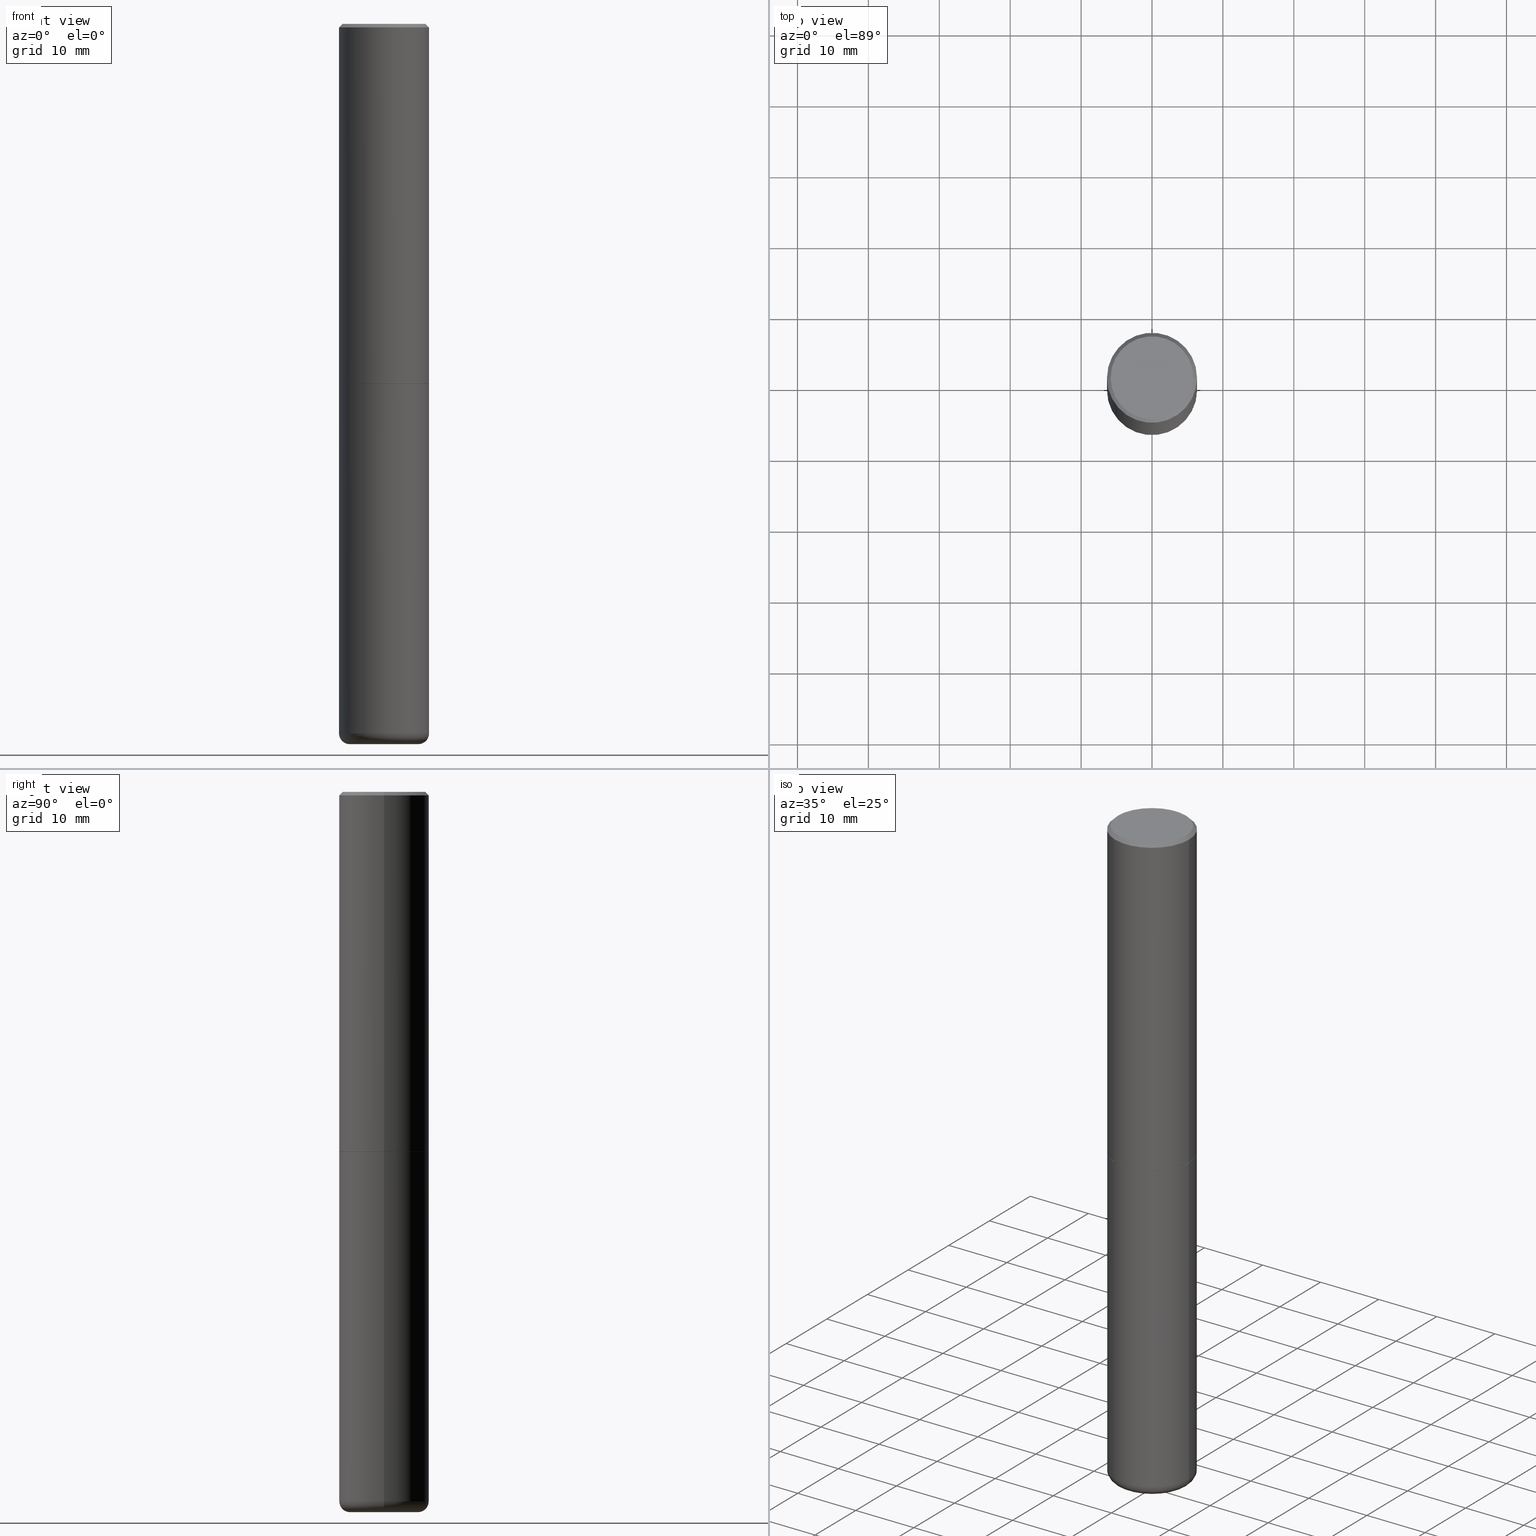
[diagram: canonical four-view strip — front | top / right | iso, engineering-drawing reading convention]
A machine part, canonical four-view strip (front | top / right | iso — engineering-drawing reading convention). The complete STEP part file that produces these views, byte-faithful:
ISO-10303-21;
HEADER;
FILE_DESCRIPTION (( 'STEP AP203' ),
    '1' );
FILE_NAME ('32686.STEP',
    '2022-04-26T19:41:12',
    ( '' ),
    ( '' ),
    'SwSTEP 2.0',
    'SolidWorks 2022',
    '' );
FILE_SCHEMA (( 'CONFIG_CONTROL_DESIGN' ));
ENDSEC;

DATA;
#1 = CARTESIAN_POINT ( 'NONE',  ( -0.1899999999999999467, -1.240640527709780404E-14, -3.939999999999999947 ) ) ;
#2 = ORIENTED_EDGE ( 'NONE', *, *, #45, .T. ) ;
#3 = CARTESIAN_POINT ( 'NONE',  ( 4.890937612370287172E-31, -6.982962677686310098E-17, -0.02000000000000005593 ) ) ;
#4 = AXIS2_PLACEMENT_3D ( 'NONE', #278, #108, #286 ) ;
#5 = ORGANIZATION ( 'UNSPECIFIED', 'UNSPECIFIED', '' ) ;
#6 = APPROVAL_STATUS ( 'not_yet_approved' ) ;
#7 = ORIENTED_EDGE ( 'NONE', *, *, #355, .F. ) ;
#8 = CALENDAR_DATE ( 2022, 26, 4 ) ;
#9 = PRODUCT_DEFINITION ( 'UNKNOWN', '', #112, #409 ) ;
#10 = VECTOR ( 'NONE', #408, 39.37007874015747433 ) ;
#11 = AXIS2_PLACEMENT_3D ( 'NONE', #295, #219, #253 ) ;
#12 = LINE ( 'NONE', #343, #425 ) ;
#13 = CARTESIAN_POINT ( 'NONE',  ( 4.890937612370273194E-29, -6.982962677686291165E-15, -2.000000000000000000 ) ) ;
#14 = FACE_OUTER_BOUND ( 'NONE', #204, .T. ) ;
#15 = EDGE_CURVE ( 'NONE', #256, #72, #311, .T. ) ;
#16 = AXIS2_PLACEMENT_3D ( 'NONE', #3, #78, #210 ) ;
#17 = AXIS2_PLACEMENT_3D ( 'NONE', #53, #217, #88 ) ;
#18 = DIRECTION ( 'NONE',  ( -2.445468806185136597E-29, 3.491481338843145583E-15, 1.000000000000000000 ) ) ;
#19 = CARTESIAN_POINT ( 'NONE',  ( 0.000000000000000000, 0.000000000000000000, 0.000000000000000000 ) ) ;
#20 = CC_DESIGN_PERSON_AND_ORGANIZATION_ASSIGNMENT ( #71, #232, ( #112 ) ) ;
#21 = CARTESIAN_POINT ( 'NONE',  ( -0.2500000000000000000, 1.776356839400250465E-15, -1.229733772563726445E-29 ) ) ;
#22 = CARTESIAN_POINT ( 'NONE',  ( -6.746709532489932096E-19, -1.395437790004556830E-14, -3.996692677346274980 ) ) ;
#23 = APPROVAL_PERSON_ORGANIZATION ( #228, #430, #413 ) ;
#24 = CARTESIAN_POINT ( 'NONE',  ( 4.890937612370272633E-29, -6.982962677686290376E-15, -1.999999999999999778 ) ) ;
#25 = ORIENTED_EDGE ( 'NONE', *, *, #135, .T. ) ;
#26 = LINE ( 'NONE', #145, #133 ) ;
#27 = ORIENTED_EDGE ( 'NONE', *, *, #240, .F. ) ;
#28 = EDGE_CURVE ( 'NONE', #33, #127, #100, .T. ) ;
#29 = MECHANICAL_CONTEXT ( 'NONE', #202, 'mechanical' ) ;
#30 = EDGE_LOOP ( 'NONE', ( #269, #104, #276 ) ) ;
#31 = CIRCLE ( 'NONE', #392, 0.2299999999999997324 ) ;
#32 = DATE_AND_TIME ( #386, #337 ) ;
#33 = VERTEX_POINT ( 'NONE', #365 ) ;
#34 = ORIENTED_EDGE ( 'NONE', *, *, #28, .F. ) ;
#35 = VERTEX_POINT ( 'NONE', #440 ) ;
#36 = DIRECTION ( 'NONE',  ( -6.982962677686266711E-15, -1.000000000000000000, 3.491481338843145583E-15 ) ) ;
#37 = EDGE_LOOP ( 'NONE', ( #308, #123, #63, #151 ) ) ;
#38 = PERSON_AND_ORGANIZATION_ROLE ( 'classification_officer' ) ;
#39 = VERTEX_POINT ( 'NONE', #227 ) ;
#40 = CC_DESIGN_APPROVAL ( #218, ( #346 ) ) ;
#41 = EDGE_CURVE ( 'NONE', #127, #400, #57, .T. ) ;
#42 = CYLINDRICAL_SURFACE ( 'NONE', #79, 0.2499999999999998612 ) ;
#43 = APPROVAL_ROLE ( '' ) ;
#44 = CARTESIAN_POINT ( 'NONE',  ( -0.2499999999999997224, 1.675911042644701605E-15, -0.02000000000000005593 ) ) ;
#45 = EDGE_CURVE ( 'NONE', #309, #201, #122, .T. ) ;
#46 = VERTEX_POINT ( 'NONE', #370 ) ;
#47 = PERSON_AND_ORGANIZATION ( #342, #5 ) ;
#48 = DIRECTION ( 'NONE',  ( -2.445468806185136597E-29, 3.491481338843145583E-15, 1.000000000000000000 ) ) ;
#49 = AXIS2_PLACEMENT_3D ( 'NONE', #330, #431, #368 ) ;
#50 = EDGE_CURVE ( 'NONE', #35, #33, #64, .T. ) ;
#51 = CARTESIAN_POINT ( 'NONE',  ( 9.635147096369438236E-29, -1.375643647504199401E-14, -3.939999999999999947 ) ) ;
#52 = DIRECTION ( 'NONE',  ( -2.445468806185136877E-29, 3.491481338843145188E-15, 1.000000000000000000 ) ) ;
#53 = CARTESIAN_POINT ( 'NONE',  ( 9.781852877335901907E-29, -1.396589344920142545E-14, -3.999990861709383783 ) ) ;
#54 = CLOSED_SHELL ( 'NONE', ( #247, #97, #118, #394, #307, #288, #404, #68 ) ) ;
#55 = CARTESIAN_POINT ( 'NONE',  ( 9.635147096369438236E-29, -1.375643647504199401E-14, -3.939999999999999947 ) ) ;
#56 = LOCAL_TIME ( 15, 41, 12.00000000000000000, #126 ) ;
#57 = LINE ( 'NONE', #332, #105 ) ;
#58 = DIRECTION ( 'NONE',  ( 1.000000000000000000, -6.982962677686266711E-15, 4.876176775795935793E-29 ) ) ;
#59 = ORIENTED_EDGE ( 'NONE', *, *, #124, .T. ) ;
#60 = CARTESIAN_POINT ( 'NONE',  ( 0.1899999999999999467, -1.508319938380238406E-14, -3.939999999999999947 ) ) ;
#61 = CC_DESIGN_DATE_AND_TIME_ASSIGNMENT ( #390, #243, ( #346 ) ) ;
#62 = CARTESIAN_POINT ( 'NONE',  ( 0.2500000000000000000, -8.725211865769014047E-15, -1.998999999999999888 ) ) ;
#63 = ORIENTED_EDGE ( 'NONE', *, *, #214, .F. ) ;
#64 = LINE ( 'NONE', #163, #10 ) ;
#65 = AXIS2_PLACEMENT_3D ( 'NONE', #51, #255, #366 ) ;
#66 = FACE_OUTER_BOUND ( 'NONE', #378, .T. ) ;
#67 = DIRECTION ( 'NONE',  ( -1.000000000000000000, 7.105427357601017636E-15, 0.000000000000000000 ) ) ;
#68 = ADVANCED_FACE ( 'NONE', ( #66 ), #77, .F. ) ;
#69 = EDGE_LOOP ( 'NONE', ( #296, #407, #25, #367 ) ) ;
#70 = VERTEX_POINT ( 'NONE', #213 ) ;
#71 = PERSON_AND_ORGANIZATION ( #342, #5 ) ;
#72 = VERTEX_POINT ( 'NONE', #178 ) ;
#73 = AXIS2_PLACEMENT_3D ( 'NONE', #421, #211, #352 ) ;
#74 = CC_DESIGN_APPROVAL ( #292, ( #9 ) ) ;
#75 = EDGE_CURVE ( 'NONE', #72, #256, #391, .T. ) ;
#76 = DATE_AND_TIME ( #200, #144 ) ;
#77 = PLANE ( 'NONE',  #272 ) ;
#78 = DIRECTION ( 'NONE',  ( 2.445468806185136597E-29, -3.491481338843145583E-15, -1.000000000000000000 ) ) ;
#79 = AXIS2_PLACEMENT_3D ( 'NONE', #237, #420, #281 ) ;
#80 = AXIS2_PLACEMENT_3D ( 'NONE', #1, #129, #67 ) ;
#81 = PRODUCT_RELATED_PRODUCT_CATEGORY ( 'detail', '', ( #362 ) ) ;
#82 = ADVANCED_FACE ( 'NONE', ( #14 ), #141, .F. ) ;
#83 = CONICAL_SURFACE ( 'NONE', #289, 2255.510300424678917, 1.553343034274961676 ) ;
#84 = CARTESIAN_POINT ( 'NONE',  ( 0.2489999999999999991, -8.721720384430171040E-15, -1.999999999999999778 ) ) ;
#85 = CARTESIAN_POINT ( 'NONE',  ( 4.890937612370273194E-29, -6.982962677686291165E-15, -2.000000000000000000 ) ) ;
#86 = DIRECTION ( 'NONE',  ( -1.000000000000000000, 6.982962677686269077E-15, 0.000000000000000000 ) ) ;
#87 = CARTESIAN_POINT ( 'NONE',  ( -0.2500000000000000000, -8.593342736963892519E-15, -2.000000000000000000 ) ) ;
#88 = DIRECTION ( 'NONE',  ( 1.000000000000000000, -6.982962677686262766E-15, 0.000000000000000000 ) ) ;
#89 = ORIENTED_EDGE ( 'NONE', *, *, #235, .T. ) ;
#90 = CC_DESIGN_DATE_AND_TIME_ASSIGNMENT ( #76, #208, ( #9 ) ) ;
#91 = FACE_OUTER_BOUND ( 'NONE', #306, .T. ) ;
#92 = ORIENTED_EDGE ( 'NONE', *, *, #28, .T. ) ;
#93 = ORIENTED_EDGE ( 'NONE', *, *, #393, .T. ) ;
#94 = DIRECTION ( 'NONE',  ( 1.000000000000000000, -6.982962677686270655E-15, 0.000000000000000000 ) ) ;
#95 = ORIENTED_EDGE ( 'NONE', *, *, #418, .F. ) ;
#96 = LINE ( 'NONE', #22, #325 ) ;
#97 = ADVANCED_FACE ( 'NONE', ( #136 ), #42, .T. ) ;
#98 = PERSON_AND_ORGANIZATION_ROLE ( 'creator' ) ;
#99 = ORIENTED_EDGE ( 'NONE', *, *, #50, .F. ) ;
#100 = CIRCLE ( 'NONE', #353, 0.06000000000000004635 ) ;
#101 = VECTOR ( 'NONE', #254, 39.37007874015748143 ) ;
#102 = PERSON_AND_ORGANIZATION_ROLE ( 'design_owner' ) ;
#103 = EDGE_LOOP ( 'NONE', ( #27, #226 ) ) ;
#104 = ORIENTED_EDGE ( 'NONE', *, *, #50, .T. ) ;
#105 = VECTOR ( 'NONE', #188, 39.37007874015748143 ) ;
#106 = FACE_OUTER_BOUND ( 'NONE', #37, .T. ) ;
#107 = CARTESIAN_POINT ( 'NONE',  ( 0.2500000000000000000, -1.550217714446356069E-14, -3.939999999999999947 ) ) ;
#108 = DIRECTION ( 'NONE',  ( -2.445468806185136597E-29, 3.491481338843145583E-15, 1.000000000000000000 ) ) ;
#109 = DIRECTION ( 'NONE',  ( -2.445468806185136597E-29, 3.491481338843145583E-15, 1.000000000000000000 ) ) ;
#110 = VECTOR ( 'NONE', #405, 39.37007874015748143 ) ;
#111 = LOCAL_TIME ( 15, 41, 12.00000000000000000, #350 ) ;
#112 = PRODUCT_DEFINITION_FORMATION_WITH_SPECIFIED_SOURCE ( 'ANY', '', #362, .NOT_KNOWN. ) ;
#113 = FACE_OUTER_BOUND ( 'NONE', #414, .T. ) ;
#114 = ADVANCED_FACE ( 'NONE', ( #106 ), #173, .T. ) ;
#115 = DIRECTION ( 'NONE',  ( 1.000000000000000000, -6.982962677686266711E-15, 0.000000000000000000 ) ) ;
#116 = CARTESIAN_POINT ( 'NONE',  ( 1.745740669421615390E-15, 0.2499999999999930334, -2.000000000000000888 ) ) ;
#117 = PLANE ( 'NONE',  #358 ) ;
#118 = ADVANCED_FACE ( 'NONE', ( #344 ), #239, .T. ) ;
#119 = DIRECTION ( 'NONE',  ( 1.000000000000000000, -6.982962677686266711E-15, 0.000000000000000000 ) ) ;
#120 = ORIENTED_EDGE ( 'NONE', *, *, #15, .T. ) ;
#121 = DIRECTION ( 'NONE',  ( -2.445468806185136597E-29, 3.491481338843145583E-15, 1.000000000000000000 ) ) ;
#122 = LINE ( 'NONE', #264, #110 ) ;
#123 = ORIENTED_EDGE ( 'NONE', *, *, #422, .T. ) ;
#124 = EDGE_CURVE ( 'NONE', #224, #72, #242, .T. ) ;
#125 = UNCERTAINTY_MEASURE_WITH_UNIT (LENGTH_MEASURE( 1.000000000000000082E-05 ), #381, 'distance_accuracy_value', 'NONE');
#126 = COORDINATED_UNIVERSAL_TIME_OFFSET ( 5, 0, .BEHIND. ) ;
#127 = VERTEX_POINT ( 'NONE', #107 ) ;
#128 = ORIENTED_EDGE ( 'NONE', *, *, #418, .T. ) ;
#129 = DIRECTION ( 'NONE',  ( 7.105427357601001859E-15, 1.000000000000000000, -3.491481338843145583E-15 ) ) ;
#130 = ORIENTED_EDGE ( 'NONE', *, *, #271, .T. ) ;
#131 = TOROIDAL_SURFACE ( 'NONE', #154, 0.1899999999999999467, 0.06000000000000006023 ) ;
#132 = LINE ( 'NONE', #277, #259 ) ;
#133 = VECTOR ( 'NONE', #52, 39.37007874015748143 ) ;
#134 =( NAMED_UNIT ( * ) SI_UNIT ( $, .STERADIAN. ) SOLID_ANGLE_UNIT ( ) );
#135 = EDGE_CURVE ( 'NONE', #270, #256, #12, .T. ) ;
#136 = FACE_OUTER_BOUND ( 'NONE', #267, .T. ) ;
#137 = FACE_OUTER_BOUND ( 'NONE', #168, .T. ) ;
#138 = AXIS2_PLACEMENT_3D ( 'NONE', #19, #402, #294 ) ;
#139 = CARTESIAN_POINT ( 'NONE',  ( 9.635147096369438236E-29, -1.375643647504199401E-14, -3.939999999999999947 ) ) ;
#140 = EDGE_CURVE ( 'NONE', #199, #39, #132, .T. ) ;
#141 = CONICAL_SURFACE ( 'NONE', #180, 2255.510300424678917, 1.553343034274961676 ) ;
#142 = DIRECTION ( 'NONE',  ( 1.000000000000000000, -6.982962677686265922E-15, 4.876176775795935793E-29 ) ) ;
#143 = FACE_OUTER_BOUND ( 'NONE', #69, .T. ) ;
#144 = LOCAL_TIME ( 15, 41, 12.00000000000000000, #338 ) ;
#145 = CARTESIAN_POINT ( 'NONE',  ( -0.2499999999999998612, 1.776356839400249479E-15, -1.229733772563725745E-29 ) ) ;
#146 = ADVANCED_BREP_SHAPE_REPRESENTATION ( '32686', ( #258, #248, #216 ), #222 ) ;
#147 = CARTESIAN_POINT ( 'NONE',  ( 0.2500000000000000000, -8.728703347107857054E-15, -2.000000000000000000 ) ) ;
#148 = ORIENTED_EDGE ( 'NONE', *, *, #321, .F. ) ;
#149 = FACE_OUTER_BOUND ( 'NONE', #162, .T. ) ;
#150 = DIRECTION ( 'NONE',  ( -2.445468806185136597E-29, 3.491481338843145583E-15, 1.000000000000000000 ) ) ;
#151 = ORIENTED_EDGE ( 'NONE', *, *, #41, .F. ) ;
#152 = DIRECTION ( 'NONE',  ( 1.000000000000000000, -6.982962677686266711E-15, 0.000000000000000000 ) ) ;
#153 = DIMENSIONAL_EXPONENTS ( 1.000000000000000000, 0.000000000000000000, 0.000000000000000000, 0.000000000000000000, 0.000000000000000000, 0.000000000000000000, 0.000000000000000000 ) ;
#154 = AXIS2_PLACEMENT_3D ( 'NONE', #139, #285, #423 ) ;
#155 = PERSON_AND_ORGANIZATION ( #342, #5 ) ;
#156 = CIRCLE ( 'NONE', #65, 0.2500000000000000000 ) ;
#157 = EDGE_CURVE ( 'NONE', #35, #70, #96, .T. ) ;
#158 = EDGE_LOOP ( 'NONE', ( #275, #340, #128, #437 ) ) ;
#159 = DIRECTION ( 'NONE',  ( 0.7071067811865464625, -7.319954787623252890E-15, -0.7071067811865486830 ) ) ;
#160 = APPROVAL_STATUS ( 'not_yet_approved' ) ;
#161 = ORIENTED_EDGE ( 'NONE', *, *, #235, .F. ) ;
#162 = EDGE_LOOP ( 'NONE', ( #301, #334, #92, #410 ) ) ;
#163 = CARTESIAN_POINT ( 'NONE',  ( 6.746709534444689360E-19, -1.395437790004556830E-14, -3.996692677346274980 ) ) ;
#164 = DIRECTION ( 'NONE',  ( 1.000000000000000000, 0.000000000000000000, 0.000000000000000000 ) ) ;
#165 = ORIENTED_EDGE ( 'NONE', *, *, #214, .T. ) ;
#166 = DIRECTION ( 'NONE',  ( -1.000000000000000000, 6.982962677686269077E-15, 0.000000000000000000 ) ) ;
#167 = CARTESIAN_POINT ( 'NONE',  ( 0.000000000000000000, 0.000000000000000000, 0.000000000000000000 ) ) ;
#168 = EDGE_LOOP ( 'NONE', ( #93, #230, #198, #34 ) ) ;
#169 = CARTESIAN_POINT ( 'NONE',  ( -0.2489999999999999991, -5.208412811295418518E-15, -1.999999999999999778 ) ) ;
#170 = ADVANCED_FACE ( 'NONE', ( #149 ), #357, .T. ) ;
#171 = PERSON_AND_ORGANIZATION_ROLE ( 'creator' ) ;
#172 = FACE_OUTER_BOUND ( 'NONE', #30, .T. ) ;
#173 = CYLINDRICAL_SURFACE ( 'NONE', #401, 0.2500000000000000000 ) ;
#174 = CC_DESIGN_PERSON_AND_ORGANIZATION_ASSIGNMENT ( #372, #98, ( #112 ) ) ;
#175 = DIRECTION ( 'NONE',  ( -0.7071067811866199593, 7.493145998870616062E-15, 0.7071067811864750752 ) ) ;
#176 = AXIS2_PLACEMENT_3D ( 'NONE', #356, #48, #387 ) ;
#177 = CC_DESIGN_APPROVAL ( #430, ( #112 ) ) ;
#178 = CARTESIAN_POINT ( 'NONE',  ( -0.2499999999999999722, -1.748293572161904475E-15, -1.998999999999999888 ) ) ;
#179 = APPROVAL_STATUS ( 'not_yet_approved' ) ;
#180 = AXIS2_PLACEMENT_3D ( 'NONE', #389, #316, #166 ) ;
#181 = CIRCLE ( 'NONE', #11, 0.2499999999999997224 ) ;
#182 = DIRECTION ( 'NONE',  ( -2.438088387897960049E-29, 3.491481338843145188E-15, 1.000000000000000000 ) ) ;
#183 = FACE_OUTER_BOUND ( 'NONE', #262, .T. ) ;
#184 = CC_DESIGN_PERSON_AND_ORGANIZATION_ASSIGNMENT ( #155, #102, ( #362 ) ) ;
#185 = AXIS2_PLACEMENT_3D ( 'NONE', #13, #109, #379 ) ;
#186 = CIRCLE ( 'NONE', #17, 0.1889528556137633486 ) ;
#187 = CARTESIAN_POINT ( 'NONE',  ( 4.890937612370287172E-31, -6.982962677686310098E-17, -0.02000000000000005593 ) ) ;
#188 = DIRECTION ( 'NONE',  ( -2.445468806185136877E-29, 3.491481338843145188E-15, 1.000000000000000000 ) ) ;
#189 = DIRECTION ( 'NONE',  ( -1.000000000000000000, 6.982962677686265922E-15, -4.876176775795935793E-29 ) ) ;
#190 = VERTEX_POINT ( 'NONE', #87 ) ;
#191 = DIRECTION ( 'NONE',  ( 1.000000000000000000, -6.982962677686262766E-15, 0.000000000000000000 ) ) ;
#192 = ADVANCED_FACE ( 'NONE', ( #297 ), #302, .T. ) ;
#193 = DIRECTION ( 'NONE',  ( -1.000000000000000000, 6.982962677686266711E-15, 0.000000000000000000 ) ) ;
#194 = ORIENTED_EDGE ( 'NONE', *, *, #41, .T. ) ;
#195 = ORIENTED_EDGE ( 'NONE', *, *, #355, .T. ) ;
#196 = AXIS2_PLACEMENT_3D ( 'NONE', #424, #18, #323 ) ;
#197 = APPLICATION_PROTOCOL_DEFINITION ( 'international standard', 'config_control_design', 1994, #202 ) ;
#198 = ORIENTED_EDGE ( 'NONE', *, *, #348, .F. ) ;
#199 = VERTEX_POINT ( 'NONE', #403 ) ;
#200 = CALENDAR_DATE ( 2022, 26, 4 ) ;
#201 = VERTEX_POINT ( 'NONE', #44 ) ;
#202 = APPLICATION_CONTEXT ( 'configuration controlled 3d designs of mechanical parts and assemblies' ) ;
#203 = PERSON_AND_ORGANIZATION ( #342, #5 ) ;
#204 = EDGE_LOOP ( 'NONE', ( #99, #415, #305 ) ) ;
#205 = ADVANCED_FACE ( 'NONE', ( #137 ), #131, .T. ) ;
#206 =( NAMED_UNIT ( * ) PLANE_ANGLE_UNIT ( ) SI_UNIT ( $, .RADIAN. ) );
#207 = AXIS2_PLACEMENT_3D ( 'NONE', #361, #427, #119 ) ;
#208 = DATE_TIME_ROLE ( 'creation_date' ) ;
#209 = CC_DESIGN_PERSON_AND_ORGANIZATION_ASSIGNMENT ( #304, #171, ( #9 ) ) ;
#210 = DIRECTION ( 'NONE',  ( -1.000000000000000000, 6.982962677686266711E-15, 0.000000000000000000 ) ) ;
#211 = DIRECTION ( 'NONE',  ( -2.445468806185136597E-29, 3.491481338843145583E-15, 1.000000000000000000 ) ) ;
#212 = APPROVAL_DATE_TIME ( #349, #218 ) ;
#213 = CARTESIAN_POINT ( 'NONE',  ( -0.1889528556137627657, -1.264644271060827798E-14, -3.999990861709383783 ) ) ;
#214 = EDGE_CURVE ( 'NONE', #400, #190, #374, .T. ) ;
#215 = CIRCLE ( 'NONE', #4, 0.2499999999999997224 ) ;
#216 = AXIS2_PLACEMENT_3D ( 'NONE', #167, #238, #164 ) ;
#217 = DIRECTION ( 'NONE',  ( -2.445468806185136597E-29, 3.491481338843145583E-15, 1.000000000000000000 ) ) ;
#218 = APPROVAL ( #179, 'UNSPECIFIED' ) ;
#219 = DIRECTION ( 'NONE',  ( -2.445468806185136597E-29, 3.491481338843145583E-15, 1.000000000000000000 ) ) ;
#220 = DIRECTION ( 'NONE',  ( -2.445468806185136877E-29, 3.491481338843145188E-15, 1.000000000000000000 ) ) ;
#221 = AXIS2_PLACEMENT_3D ( 'NONE', #55, #263, #398 ) ;
#222 =( GEOMETRIC_REPRESENTATION_CONTEXT ( 3 ) GLOBAL_UNCERTAINTY_ASSIGNED_CONTEXT ( ( #125 ) ) GLOBAL_UNIT_ASSIGNED_CONTEXT ( ( #381, #206, #134 ) ) REPRESENTATION_CONTEXT ( 'NONE', 'WORKASPACE' ) );
#223 = DIRECTION ( 'NONE',  ( -2.445468806185136597E-29, 3.491481338843145583E-15, 1.000000000000000000 ) ) ;
#224 = VERTEX_POINT ( 'NONE', #169 ) ;
#225 = FACE_OUTER_BOUND ( 'NONE', #103, .T. ) ;
#226 = ORIENTED_EDGE ( 'NONE', *, *, #280, .F. ) ;
#227 = CARTESIAN_POINT ( 'NONE',  ( 0.2499999999999997224, -1.784954126219744217E-15, -0.02000000000000005593 ) ) ;
#228 = PERSON_AND_ORGANIZATION ( #342, #5 ) ;
#229 = ORIENTED_EDGE ( 'NONE', *, *, #422, .F. ) ;
#230 = ORIENTED_EDGE ( 'NONE', *, *, #436, .T. ) ;
#231 = CONICAL_SURFACE ( 'NONE', #176, 0.2489999999999999991, 0.7853981633975507526 ) ;
#232 = PERSON_AND_ORGANIZATION_ROLE ( 'design_supplier' ) ;
#233 = CARTESIAN_POINT ( 'NONE',  ( 4.888492143564087591E-29, -6.979471196347447369E-15, -1.998999999999999888 ) ) ;
#234 = CALENDAR_DATE ( 2022, 26, 4 ) ;
#235 = EDGE_CURVE ( 'NONE', #201, #39, #215, .T. ) ;
#236 = ORIENTED_EDGE ( 'NONE', *, *, #135, .F. ) ;
#237 = CARTESIAN_POINT ( 'NONE',  ( 0.000000000000000000, 0.000000000000000000, 0.000000000000000000 ) ) ;
#238 = DIRECTION ( 'NONE',  ( 0.000000000000000000, 0.000000000000000000, 1.000000000000000000 ) ) ;
#239 = CONICAL_SURFACE ( 'NONE', #16, 0.2499999999999997224, 0.7853981633974467247 ) ;
#240 = EDGE_CURVE ( 'NONE', #270, #224, #245, .T. ) ;
#241 = DIRECTION ( 'NONE',  ( 1.000000000000000000, -6.982962677686266711E-15, 4.876176775795935793E-29 ) ) ;
#242 = LINE ( 'NONE', #351, #244 ) ;
#243 = DATE_TIME_ROLE ( 'classification_date' ) ;
#244 = VECTOR ( 'NONE', #175, 39.37007874015748143 ) ;
#245 = CIRCLE ( 'NONE', #196, 0.2489999999999999991 ) ;
#246 = AXIS2_PLACEMENT_3D ( 'NONE', #322, #121, #293 ) ;
#247 = ADVANCED_FACE ( 'NONE', ( #113 ), #231, .T. ) ;
#248 = MANIFOLD_SOLID_BREP ( 'Body-Move/Copy2[2]', #54 ) ;
#249 = DIRECTION ( 'NONE',  ( -2.445468806185136597E-29, 3.491481338843145583E-15, 1.000000000000000000 ) ) ;
#250 = CIRCLE ( 'NONE', #429, 0.2489999999999999991 ) ;
#251 = APPROVAL_PERSON_ORGANIZATION ( #300, #292, #279 ) ;
#252 = ADVANCED_FACE ( 'NONE', ( #172 ), #83, .F. ) ;
#253 = DIRECTION ( 'NONE',  ( 1.000000000000000000, -6.982962677686266711E-15, 0.000000000000000000 ) ) ;
#254 = DIRECTION ( 'NONE',  ( -2.445468806185136877E-29, 3.491481338843145188E-15, 1.000000000000000000 ) ) ;
#255 = DIRECTION ( 'NONE',  ( -2.445468806185136597E-29, 3.491481338843145583E-15, 1.000000000000000000 ) ) ;
#256 = VERTEX_POINT ( 'NONE', #62 ) ;
#257 = DIRECTION ( 'NONE',  ( -2.445468806185136597E-29, 3.491481338843145583E-15, 1.000000000000000000 ) ) ;
#258 = MANIFOLD_SOLID_BREP ( 'Body-Move/Copy2[1]', #282 ) ;
#259 = VECTOR ( 'NONE', #159, 39.37007874015748143 ) ;
#260 = CONICAL_SURFACE ( 'NONE', #274, 0.2499999999999997224, 0.7853981633974467247 ) ;
#261 = CYLINDRICAL_SURFACE ( 'NONE', #385, 0.2499999999999998612 ) ;
#262 = EDGE_LOOP ( 'NONE', ( #7, #434, #373, #161 ) ) ;
#263 = DIRECTION ( 'NONE',  ( -2.445468806185136597E-29, 3.491481338843145583E-15, 1.000000000000000000 ) ) ;
#264 = CARTESIAN_POINT ( 'NONE',  ( -0.2499999999999997224, 1.675911042644701605E-15, -0.02000000000000005593 ) ) ;
#265 = COORDINATED_UNIVERSAL_TIME_OFFSET ( 5, 0, .BEHIND. ) ;
#266 = ORIENTED_EDGE ( 'NONE', *, *, #271, .F. ) ;
#267 = EDGE_LOOP ( 'NONE', ( #120, #195, #95, #411 ) ) ;
#268 = APPROVAL_DATE_TIME ( #377, #430 ) ;
#269 = ORIENTED_EDGE ( 'NONE', *, *, #157, .F. ) ;
#270 = VERTEX_POINT ( 'NONE', #84 ) ;
#271 = EDGE_CURVE ( 'NONE', #309, #199, #336, .T. ) ;
#272 = AXIS2_PLACEMENT_3D ( 'NONE', #380, #287, #383 ) ;
#273 = APPLICATION_PROTOCOL_DEFINITION ( 'international standard', 'config_control_design', 1994, #319 ) ;
#274 = AXIS2_PLACEMENT_3D ( 'NONE', #187, #396, #193 ) ;
#275 = ORIENTED_EDGE ( 'NONE', *, *, #371, .F. ) ;
#276 = ORIENTED_EDGE ( 'NONE', *, *, #339, .F. ) ;
#277 = CARTESIAN_POINT ( 'NONE',  ( 0.2499999999999997224, -1.784954126219744217E-15, -0.02000000000000005593 ) ) ;
#278 = CARTESIAN_POINT ( 'NONE',  ( 4.890937612370287172E-31, -6.982962677686310098E-17, -0.02000000000000005593 ) ) ;
#279 = APPROVAL_ROLE ( '' ) ;
#280 = EDGE_CURVE ( 'NONE', #224, #270, #250, .T. ) ;
#281 = DIRECTION ( 'NONE',  ( 1.000000000000000000, -6.982962677686266711E-15, 4.876176775795935793E-29 ) ) ;
#282 = CLOSED_SHELL ( 'NONE', ( #114, #205, #252, #82, #170, #192, #382 ) ) ;
#283 = LOCAL_TIME ( 15, 41, 12.00000000000000000, #313 ) ;
#284 = SHAPE_DEFINITION_REPRESENTATION ( #345, #146 ) ;
#285 = DIRECTION ( 'NONE',  ( -2.445468806185136597E-29, 3.491481338843145583E-15, 1.000000000000000000 ) ) ;
#286 = DIRECTION ( 'NONE',  ( 1.000000000000000000, -6.982962677686266711E-15, 0.000000000000000000 ) ) ;
#287 = DIRECTION ( 'NONE',  ( 2.438088387897960049E-29, -3.491481338843145188E-15, -1.000000000000000000 ) ) ;
#288 = ADVANCED_FACE ( 'NONE', ( #143 ), #375, .T. ) ;
#289 = AXIS2_PLACEMENT_3D ( 'NONE', #290, #327, #86 ) ;
#290 = CARTESIAN_POINT ( 'NONE',  ( 1.060520867264666152E-27, -1.514142731300906757E-13, -43.36677141750375597 ) ) ;
#291 = PLANE ( 'NONE',  #364 ) ;
#292 = APPROVAL ( #160, 'UNSPECIFIED' ) ;
#293 = DIRECTION ( 'NONE',  ( 1.000000000000000000, -6.982962677686266711E-15, 0.000000000000000000 ) ) ;
#294 = DIRECTION ( 'NONE',  ( 1.000000000000000000, -6.982962677686266711E-15, 4.876176775795935793E-29 ) ) ;
#295 = CARTESIAN_POINT ( 'NONE',  ( 4.890937612370287172E-31, -6.982962677686310098E-17, -0.02000000000000005593 ) ) ;
#296 = ORIENTED_EDGE ( 'NONE', *, *, #124, .F. ) ;
#297 = FACE_OUTER_BOUND ( 'NONE', #335, .T. ) ;
#298 = DIRECTION ( 'NONE',  ( 2.438088387897960049E-29, -3.491481338843145188E-15, -1.000000000000000000 ) ) ;
#299 = APPROVAL_PERSON_ORGANIZATION ( #47, #218, #43 ) ;
#300 = PERSON_AND_ORGANIZATION ( #342, #5 ) ;
#301 = ORIENTED_EDGE ( 'NONE', *, *, #436, .F. ) ;
#302 = CYLINDRICAL_SURFACE ( 'NONE', #317, 0.2500000000000000000 ) ;
#303 = ORIENTED_EDGE ( 'NONE', *, *, #371, .T. ) ;
#304 = PERSON_AND_ORGANIZATION ( #342, #5 ) ;
#305 = ORIENTED_EDGE ( 'NONE', *, *, #393, .F. ) ;
#306 = EDGE_LOOP ( 'NONE', ( #315, #266, #2, #89 ) ) ;
#307 = ADVANCED_FACE ( 'NONE', ( #183 ), #261, .T. ) ;
#308 = ORIENTED_EDGE ( 'NONE', *, *, #348, .T. ) ;
#309 = VERTEX_POINT ( 'NONE', #435 ) ;
#310 = DIRECTION ( 'NONE',  ( 0.7071067811866199593, -2.468850131083015945E-15, 0.7071067811864750752 ) ) ;
#311 = CIRCLE ( 'NONE', #384, 0.2500000000000000000 ) ;
#312 = VECTOR ( 'NONE', #220, 39.37007874015748143 ) ;
#313 = COORDINATED_UNIVERSAL_TIME_OFFSET ( 5, 0, .BEHIND. ) ;
#314 = CIRCLE ( 'NONE', #80, 0.06000000000000004635 ) ;
#315 = ORIENTED_EDGE ( 'NONE', *, *, #140, .F. ) ;
#316 = DIRECTION ( 'NONE',  ( 2.445468806185136597E-29, -3.491481338843145583E-15, -1.000000000000000000 ) ) ;
#317 = AXIS2_PLACEMENT_3D ( 'NONE', #363, #257, #438 ) ;
#318 = CARTESIAN_POINT ( 'NONE',  ( 0.000000000000000000, 0.000000000000000000, 0.000000000000000000 ) ) ;
#319 = APPLICATION_CONTEXT ( 'configuration controlled 3d designs of mechanical parts and assemblies' ) ;
#320 = CC_DESIGN_SECURITY_CLASSIFICATION ( #346, ( #112 ) ) ;
#321 = EDGE_CURVE ( 'NONE', #190, #400, #326, .T. ) ;
#322 = CARTESIAN_POINT ( 'NONE',  ( 4.890937612370272633E-29, -6.982962677686290376E-15, -1.999999999999999778 ) ) ;
#323 = DIRECTION ( 'NONE',  ( 1.000000000000000000, -6.982962677686266711E-15, 0.000000000000000000 ) ) ;
#324 = CARTESIAN_POINT ( 'NONE',  ( 0.000000000000000000, 0.000000000000000000, 0.000000000000000000 ) ) ;
#325 = VECTOR ( 'NONE', #432, 39.37007874015747433 ) ;
#326 = CIRCLE ( 'NONE', #207, 0.2500000000000000000 ) ;
#327 = DIRECTION ( 'NONE',  ( 2.445468806185136597E-29, -3.491481338843145583E-15, -1.000000000000000000 ) ) ;
#328 = ORIENTED_EDGE ( 'NONE', *, *, #240, .T. ) ;
#329 = EDGE_CURVE ( 'NONE', #256, #39, #359, .T. ) ;
#330 = CARTESIAN_POINT ( 'NONE',  ( 9.781852877335901907E-29, -1.396589344920142545E-14, -3.999990861709383783 ) ) ;
#331 = ORIENTED_EDGE ( 'NONE', *, *, #321, .T. ) ;
#332 = CARTESIAN_POINT ( 'NONE',  ( 0.2500000000000000000, -1.745740669421566678E-15, 1.219044193948983948E-29 ) ) ;
#333 = DIRECTION ( 'NONE',  ( -2.445468806185136597E-29, 3.491481338843145583E-15, 1.000000000000000000 ) ) ;
#334 = ORIENTED_EDGE ( 'NONE', *, *, #339, .T. ) ;
#335 = EDGE_LOOP ( 'NONE', ( #229, #419, #194, #148 ) ) ;
#336 = CIRCLE ( 'NONE', #138, 0.2299999999999997324 ) ;
#337 = LOCAL_TIME ( 15, 41, 12.00000000000000000, #265 ) ;
#338 = COORDINATED_UNIVERSAL_TIME_OFFSET ( 5, 0, .BEHIND. ) ;
#339 = EDGE_CURVE ( 'NONE', #70, #33, #412, .T. ) ;
#340 = ORIENTED_EDGE ( 'NONE', *, *, #140, .T. ) ;
#341 = SECURITY_CLASSIFICATION_LEVEL ( 'unclassified' ) ;
#342 = PERSON ( 'UNSPECIFIED', 'UNSPECIFIED', 'UNSPECIFIED', ('UNSPECIFIED'), ('UNSPECIFIED'), ('UNSPECIFIED') ) ;
#343 = CARTESIAN_POINT ( 'NONE',  ( 0.2489999999999999991, -8.721720384430171040E-15, -1.999999999999999778 ) ) ;
#344 = FACE_OUTER_BOUND ( 'NONE', #158, .T. ) ;
#345 = PRODUCT_DEFINITION_SHAPE ( 'NONE', 'NONE',  #9 ) ;
#346 = SECURITY_CLASSIFICATION ( '', '', #341 ) ;
#347 =( LENGTH_UNIT ( ) NAMED_UNIT ( * ) SI_UNIT ( $, .METRE. ) );
#348 = EDGE_CURVE ( 'NONE', #127, #46, #156, .T. ) ;
#349 = DATE_AND_TIME ( #8, #111 ) ;
#350 = COORDINATED_UNIVERSAL_TIME_OFFSET ( 5, 0, .BEHIND. ) ;
#351 = CARTESIAN_POINT ( 'NONE',  ( -0.2489999999999999991, -5.213711265643640920E-15, -1.999999999999999778 ) ) ;
#352 = DIRECTION ( 'NONE',  ( 1.000000000000000000, -6.982962677686266711E-15, 0.000000000000000000 ) ) ;
#353 = AXIS2_PLACEMENT_3D ( 'NONE', #60, #36, #191 ) ;
#354 = CIRCLE ( 'NONE', #439, 0.2500000000000000000 ) ;
#355 = EDGE_CURVE ( 'NONE', #72, #201, #26, .T. ) ;
#356 = CARTESIAN_POINT ( 'NONE',  ( 4.890937612370272633E-29, -6.982962677686290376E-15, -1.999999999999999778 ) ) ;
#357 = TOROIDAL_SURFACE ( 'NONE', #221, 0.1899999999999999467, 0.06000000000000006023 ) ;
#358 = AXIS2_PLACEMENT_3D ( 'NONE', #116, #298, #189 ) ;
#359 = LINE ( 'NONE', #399, #312 ) ;
#360 = LINE ( 'NONE', #21, #101 ) ;
#361 = CARTESIAN_POINT ( 'NONE',  ( 4.890937612370273194E-29, -6.982962677686291165E-15, -2.000000000000000000 ) ) ;
#362 = PRODUCT ( '32686', '32686', '', ( #29 ) ) ;
#363 = CARTESIAN_POINT ( 'NONE',  ( 0.000000000000000000, 0.000000000000000000, 0.000000000000000000 ) ) ;
#364 = AXIS2_PLACEMENT_3D ( 'NONE', #85, #182, #142 ) ;
#365 = CARTESIAN_POINT ( 'NONE',  ( 0.1889528556137627657, -1.526220413681286017E-14, -3.999990861709383783 ) ) ;
#366 = DIRECTION ( 'NONE',  ( 1.000000000000000000, -6.982962677686270655E-15, 0.000000000000000000 ) ) ;
#367 = ORIENTED_EDGE ( 'NONE', *, *, #75, .F. ) ;
#368 = DIRECTION ( 'NONE',  ( 1.000000000000000000, -6.982962677686262766E-15, 0.000000000000000000 ) ) ;
#369 = EDGE_LOOP ( 'NONE', ( #165, #331 ) ) ;
#370 = CARTESIAN_POINT ( 'NONE',  ( -0.2500000000000000000, -1.198007963564174355E-14, -3.939999999999999947 ) ) ;
#371 = EDGE_CURVE ( 'NONE', #199, #309, #31, .T. ) ;
#372 = PERSON_AND_ORGANIZATION ( #342, #5 ) ;
#373 = ORIENTED_EDGE ( 'NONE', *, *, #329, .T. ) ;
#374 = CIRCLE ( 'NONE', #185, 0.2500000000000000000 ) ;
#375 = CONICAL_SURFACE ( 'NONE', #246, 0.2489999999999999991, 0.7853981633975507526 ) ;
#376 = DIRECTION ( 'NONE',  ( -2.445468806185136597E-29, 3.491481338843145583E-15, 1.000000000000000000 ) ) ;
#377 = DATE_AND_TIME ( #234, #56 ) ;
#378 = EDGE_LOOP ( 'NONE', ( #130, #303 ) ) ;
#379 = DIRECTION ( 'NONE',  ( 1.000000000000000000, -6.982962677686266711E-15, 0.000000000000000000 ) ) ;
#380 = CARTESIAN_POINT ( 'NONE',  ( 1.606081415867839292E-15, 0.2299999999999997324, -8.030407079339226044E-16 ) ) ;
#381 =( CONVERSION_BASED_UNIT ( 'INCH', #441 ) LENGTH_UNIT ( ) NAMED_UNIT ( #153 ) );
#382 = ADVANCED_FACE ( 'NONE', ( #395 ), #117, .F. ) ;
#383 = DIRECTION ( 'NONE',  ( -1.000000000000000000, 6.982962677686265922E-15, -4.876176775795935793E-29 ) ) ;
#384 = AXIS2_PLACEMENT_3D ( 'NONE', #233, #376, #152 ) ;
#385 = AXIS2_PLACEMENT_3D ( 'NONE', #428, #150, #397 ) ;
#386 = CALENDAR_DATE ( 2022, 26, 4 ) ;
#387 = DIRECTION ( 'NONE',  ( 1.000000000000000000, -6.982962677686266711E-15, 0.000000000000000000 ) ) ;
#388 = CC_DESIGN_PERSON_AND_ORGANIZATION_ASSIGNMENT ( #203, #38, ( #346 ) ) ;
#389 = CARTESIAN_POINT ( 'NONE',  ( 1.060520867264666152E-27, -1.514142731300906757E-13, -43.36677141750375597 ) ) ;
#390 = DATE_AND_TIME ( #417, #283 ) ;
#391 = CIRCLE ( 'NONE', #73, 0.2500000000000000000 ) ;
#392 = AXIS2_PLACEMENT_3D ( 'NONE', #324, #249, #58 ) ;
#393 = EDGE_CURVE ( 'NONE', #33, #70, #186, .T. ) ;
#394 = ADVANCED_FACE ( 'NONE', ( #91 ), #260, .T. ) ;
#395 = FACE_OUTER_BOUND ( 'NONE', #369, .T. ) ;
#396 = DIRECTION ( 'NONE',  ( 2.445468806185136597E-29, -3.491481338843145583E-15, -1.000000000000000000 ) ) ;
#397 = DIRECTION ( 'NONE',  ( 1.000000000000000000, -6.982962677686266711E-15, 4.876176775795935793E-29 ) ) ;
#398 = DIRECTION ( 'NONE',  ( 1.000000000000000000, -6.982962677686270655E-15, 4.883557194083114583E-29 ) ) ;
#399 = CARTESIAN_POINT ( 'NONE',  ( 0.2499999999999998612, -1.745740669421565692E-15, 1.219044193948983248E-29 ) ) ;
#400 = VERTEX_POINT ( 'NONE', #147 ) ;
#401 = AXIS2_PLACEMENT_3D ( 'NONE', #318, #416, #241 ) ;
#402 = DIRECTION ( 'NONE',  ( -2.445468806185136597E-29, 3.491481338843145583E-15, 1.000000000000000000 ) ) ;
#403 = CARTESIAN_POINT ( 'NONE',  ( 0.2299999999999997324, -1.681434332853597236E-15, 1.149527484987431679E-29 ) ) ;
#404 = ADVANCED_FACE ( 'NONE', ( #225 ), #291, .F. ) ;
#405 = DIRECTION ( 'NONE',  ( -0.7071067811865464625, 2.468850131082245228E-15, -0.7071067811865486830 ) ) ;
#406 = APPROVAL_DATE_TIME ( #32, #292 ) ;
#407 = ORIENTED_EDGE ( 'NONE', *, *, #280, .T. ) ;
#408 = DIRECTION ( 'NONE',  ( 0.9998476951563914916, -6.920387862090557146E-15, -0.01745240643727516416 ) ) ;
#409 = DESIGN_CONTEXT ( 'detailed design', #319, 'design' ) ;
#410 = ORIENTED_EDGE ( 'NONE', *, *, #426, .F. ) ;
#411 = ORIENTED_EDGE ( 'NONE', *, *, #329, .F. ) ;
#412 = CIRCLE ( 'NONE', #49, 0.1889528556137633486 ) ;
#413 = APPROVAL_ROLE ( '' ) ;
#414 = EDGE_LOOP ( 'NONE', ( #328, #59, #442, #236 ) ) ;
#415 = ORIENTED_EDGE ( 'NONE', *, *, #157, .T. ) ;
#416 = DIRECTION ( 'NONE',  ( -2.445468806185136597E-29, 3.491481338843145583E-15, 1.000000000000000000 ) ) ;
#417 = CALENDAR_DATE ( 2022, 26, 4 ) ;
#418 = EDGE_CURVE ( 'NONE', #39, #201, #181, .T. ) ;
#419 = ORIENTED_EDGE ( 'NONE', *, *, #426, .T. ) ;
#420 = DIRECTION ( 'NONE',  ( -2.445468806185136597E-29, 3.491481338843145583E-15, 1.000000000000000000 ) ) ;
#421 = CARTESIAN_POINT ( 'NONE',  ( 4.888492143564087591E-29, -6.979471196347447369E-15, -1.998999999999999888 ) ) ;
#422 = EDGE_CURVE ( 'NONE', #46, #190, #360, .T. ) ;
#423 = DIRECTION ( 'NONE',  ( 1.000000000000000000, -6.982962677686270655E-15, 4.883557194083114583E-29 ) ) ;
#424 = CARTESIAN_POINT ( 'NONE',  ( 4.890937612370272633E-29, -6.982962677686290376E-15, -1.999999999999999778 ) ) ;
#425 = VECTOR ( 'NONE', #310, 39.37007874015748143 ) ;
#426 = EDGE_CURVE ( 'NONE', #46, #127, #354, .T. ) ;
#427 = DIRECTION ( 'NONE',  ( -2.445468806185136597E-29, 3.491481338843145583E-15, 1.000000000000000000 ) ) ;
#428 = CARTESIAN_POINT ( 'NONE',  ( 0.000000000000000000, 0.000000000000000000, 0.000000000000000000 ) ) ;
#429 = AXIS2_PLACEMENT_3D ( 'NONE', #24, #333, #115 ) ;
#430 = APPROVAL ( #6, 'UNSPECIFIED' ) ;
#431 = DIRECTION ( 'NONE',  ( -2.445468806185136597E-29, 3.491481338843145583E-15, 1.000000000000000000 ) ) ;
#432 = DIRECTION ( 'NONE',  ( -0.9998476951563914916, 6.920964387254065466E-15, -0.01745240643727516416 ) ) ;
#433 = CARTESIAN_POINT ( 'NONE',  ( 9.635147096369438236E-29, -1.375643647504199401E-14, -3.939999999999999947 ) ) ;
#434 = ORIENTED_EDGE ( 'NONE', *, *, #75, .T. ) ;
#435 = CARTESIAN_POINT ( 'NONE',  ( -0.2299999999999997324, 1.640996229256270744E-15, -1.135408596578604579E-29 ) ) ;
#436 = EDGE_CURVE ( 'NONE', #70, #46, #314, .T. ) ;
#437 = ORIENTED_EDGE ( 'NONE', *, *, #45, .F. ) ;
#438 = DIRECTION ( 'NONE',  ( 1.000000000000000000, -6.982962677686266711E-15, 4.876176775795935793E-29 ) ) ;
#439 = AXIS2_PLACEMENT_3D ( 'NONE', #433, #223, #94 ) ;
#440 = CARTESIAN_POINT ( 'NONE',  ( 9.773316150150176801E-29, -1.395505257099891461E-14, -3.996692677346274980 ) ) ;
#441 = LENGTH_MEASURE_WITH_UNIT ( LENGTH_MEASURE( 0.02539999999999999897 ), #347 );
#442 = ORIENTED_EDGE ( 'NONE', *, *, #15, .F. ) ;
ENDSEC;
END-ISO-10303-21;
